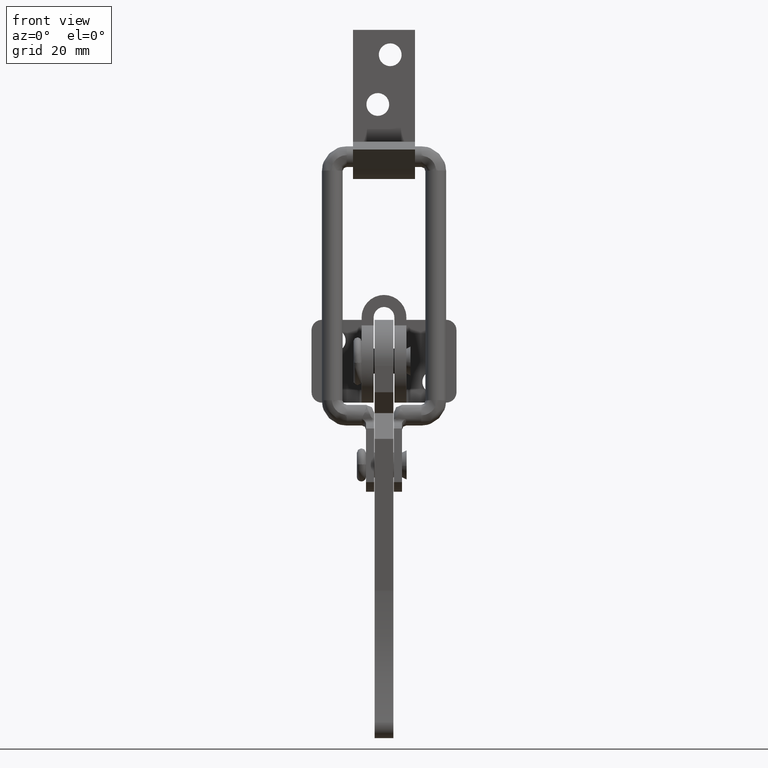
[diagram: clean part render]
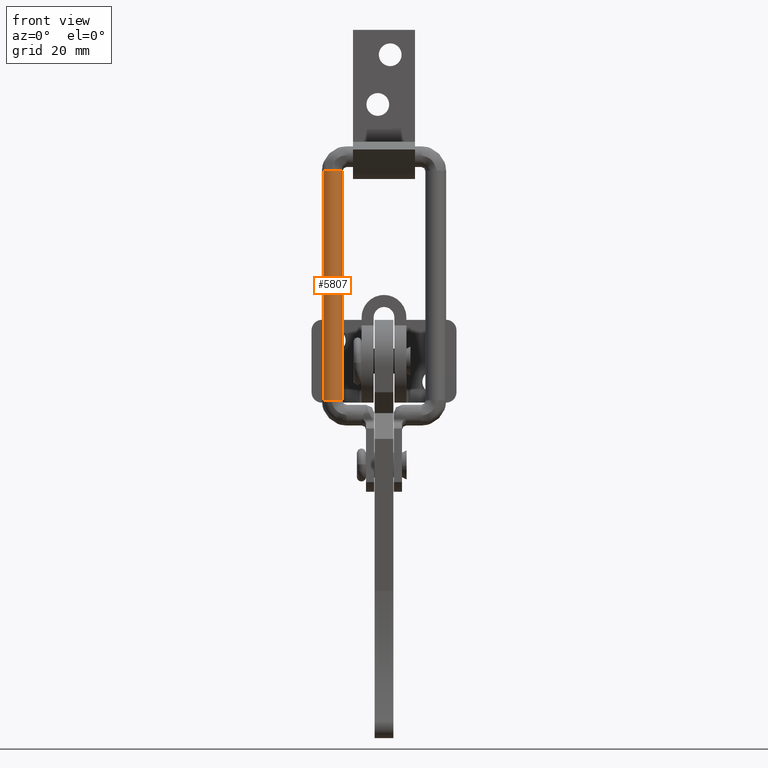
[diagram: same view with one face highlighted and labeled with its STEP entity id]
A machine part, front view. The second image highlights one B-rep face of the part: STEP entity #5807.
In plain terms, the highlighted face is a freeform B-spline surface patch.
Its self-contained STEP definition (entity closure, byte-faithful):
#5582=CARTESIAN_POINT('',(-14.561127348859870,5.322847664884176,-9.445909589647870));
#5583=VERTEX_POINT('',#5582);
#5597=CARTESIAN_POINT('',(-14.561127348027030,8.959083150561943,46.000095320518440));
#5598=VERTEX_POINT('',#5597);
#5599=CARTESIAN_POINT('',(-14.561127348027030,8.959083150561943,46.000095320518440));
#5600=CARTESIAN_POINT('',(-14.561127348859870,5.322847664884176,-9.445909589647870));
#5601=QUASI_UNIFORM_CURVE('',1,(#5599,#5600),.UNSPECIFIED.,.F.,.U.);
#5602=EDGE_CURVE('',#5598,#5583,#5601,.T.);
#5634=CARTESIAN_POINT('',(-10.523268007590840,11.898144195904100,45.807347112018967));
#5635=VERTEX_POINT('',#5634);
#5651=CARTESIAN_POINT('',(-10.523268007839940,8.261908710576730,-9.638657798582186));
#5652=VERTEX_POINT('',#5651);
#5653=CARTESIAN_POINT('',(-10.523268007590840,11.898144195904100,45.807347112018967));
#5654=CARTESIAN_POINT('',(-10.523268007839940,8.261908710576730,-9.638657798582186));
#5655=QUASI_UNIFORM_CURVE('',1,(#5653,#5654),.UNSPECIFIED.,.F.,.U.);
#5656=EDGE_CURVE('',#5635,#5652,#5655,.T.);
#5691=CARTESIAN_POINT('',(-10.523268007590660,11.989050084374810,47.193497255256013));
#5692=CARTESIAN_POINT('',(-8.992799793452859,10.016505439758681,47.322859809768808));
#5693=CARTESIAN_POINT('',(-10.969581785862200,8.489317873732130,47.423015152412432));
#5694=CARTESIAN_POINT('',(-12.946363778271532,6.962130307705579,47.523170495056057));
#5695=CARTESIAN_POINT('',(-14.476831992409339,8.934674952321704,47.393807940543262));
#5696=CARTESIAN_POINT('',(-14.520633335164348,8.991128332588119,47.390105639811019));
#5697=CARTESIAN_POINT('',(-14.561127348864494,9.049989038412400,47.386245462913813));
#5698=CARTESIAN_POINT('',(-10.523268007590660,8.168730132488578,-11.059462344951211));
#5699=CARTESIAN_POINT('',(-8.992799793452859,6.196185487872453,-10.930099790438421));
#5700=CARTESIAN_POINT('',(-10.969581785862200,4.668997921845902,-10.829944447794800));
#5701=CARTESIAN_POINT('',(-12.946363778271532,3.141810355819351,-10.729789105151172));
#5702=CARTESIAN_POINT('',(-14.476831992409339,5.114355000435475,-10.859151659663970));
#5703=CARTESIAN_POINT('',(-14.520633335164348,5.170808380701891,-10.862853960396206));
#5704=CARTESIAN_POINT('',(-14.561127348864494,5.229669086526172,-10.866714137293419));
#5712=(BOUNDED_SURFACE()B_SPLINE_SURFACE(2,1,((#5691,#5698),(#5692,#5699),(#5693,#5700),(#5694,#5701),(#5695,#5702),(#5696,#5703),(#5697,#5704)),.UNSPECIFIED.,.F.,.F.,.U.)B_SPLINE_SURFACE_WITH_KNOTS((3,2,2,3),(2,2),(0.0,4.142135623730950,8.284271247461900,8.449956672411139),(0.0,58.378096463640851),.UNSPECIFIED.)GEOMETRIC_REPRESENTATION_ITEM()RATIONAL_B_SPLINE_SURFACE(((1.0,1.0),(0.707106781186548,0.707106781186548),(1.0,1.0),(0.707106781186548,0.707106781186548),(1.0,1.0),(0.988284271247462,0.988284271247462),(0.977505800795127,0.977505800795127)))REPRESENTATION_ITEM('')SURFACE());
#5713=CARTESIAN_POINT('',(-12.562875801082480,4.240867846565324,-9.374952323295307));
#5714=VERTEX_POINT('',#5713);
#5715=CARTESIAN_POINT('',(-14.561127348859870,5.322847664884177,-9.445909589647869));
#5716=CARTESIAN_POINT('',(-13.874411204165664,4.324660691461832,-9.380446930987270));
#5717=CARTESIAN_POINT('',(-12.663652454658040,4.245427450094575,-9.375250691432656));
#5718=CARTESIAN_POINT('',(-12.613310513835611,4.242133024058255,-9.375034637834641));
#5719=CARTESIAN_POINT('',(-12.562875801082480,4.240867846565324,-9.374952323295307));
#5727=(BOUNDED_CURVE()B_SPLINE_CURVE(2,(#5715,#5716,#5717,#5718,#5719),.UNSPECIFIED.,.F.,.U.)B_SPLINE_CURVE_WITH_KNOTS((3,2,3),(0.107127540890585,0.250000000000000,0.257075575605256),.UNSPECIFIED.)CURVE()GEOMETRIC_REPRESENTATION_ITEM()RATIONAL_B_SPLINE_CURVE((0.856547225993735,0.832614502286600,1.0,0.991710447544074,0.983890121929234))REPRESENTATION_ITEM(''));
#5728=EDGE_CURVE('',#5583,#5714,#5727,.T.);
#5729=ORIENTED_EDGE('',*,*,#5728,.T.);
#5730=CARTESIAN_POINT('',(-10.005408896187699,6.571469381596707,-9.527796149394415));
#5731=VERTEX_POINT('',#5730);
#5732=CARTESIAN_POINT('',(-12.562875801082480,4.240867846565324,-9.374952323295307));
#5733=CARTESIAN_POINT('',(-10.162538957948536,4.180656402588228,-9.371002905109158));
#5734=CARTESIAN_POINT('',(-10.005408896187699,6.571469381596707,-9.527796149394415));
#5742=(BOUNDED_CURVE()B_SPLINE_CURVE(2,(#5732,#5733,#5734),.UNSPECIFIED.,.F.,.U.)B_SPLINE_CURVE_WITH_KNOTS((3,3),(0.257075575605256,0.500000000000000),.UNSPECIFIED.)CURVE()GEOMETRIC_REPRESENTATION_ITEM()RATIONAL_B_SPLINE_CURVE((0.983890121929234,0.715396333642473,1.0))REPRESENTATION_ITEM(''));
#5743=EDGE_CURVE('',#5714,#5731,#5742,.T.);
#5744=ORIENTED_EDGE('',*,*,#5743,.T.);
#5745=CARTESIAN_POINT('',(-10.005408896187699,6.571469381596707,-9.527796149394415));
#5746=CARTESIAN_POINT('',(-9.943425470839944,7.514578396791836,-9.589646709645450));
#5747=CARTESIAN_POINT('',(-10.523268007839937,8.261908710576730,-9.638657798582186));
#5755=(BOUNDED_CURVE()B_SPLINE_CURVE(2,(#5745,#5746,#5747),.UNSPECIFIED.,.F.,.U.)B_SPLINE_CURVE_WITH_KNOTS((3,3),(0.500000000000000,0.615779888024794),.UNSPECIFIED.)CURVE()GEOMETRIC_REPRESENTATION_ITEM()RATIONAL_B_SPLINE_CURVE((1.0,0.864355423690228,0.854350158230984))REPRESENTATION_ITEM(''));
#5756=EDGE_CURVE('',#5731,#5652,#5755,.T.);
#5757=ORIENTED_EDGE('',*,*,#5756,.T.);
#5758=ORIENTED_EDGE('',*,*,#5656,.F.);
#5759=CARTESIAN_POINT('',(-10.005408896187699,10.207704866647511,45.918208759930657));
#5760=VERTEX_POINT('',#5759);
#5761=CARTESIAN_POINT('',(-10.005408896187699,10.207704866647511,45.918208759930657));
#5762=CARTESIAN_POINT('',(-9.943425470818383,11.150813882170704,45.856358199658096));
#5763=CARTESIAN_POINT('',(-10.523268007590836,11.898144195904091,45.807347112018981));
#5771=(BOUNDED_CURVE()B_SPLINE_CURVE(2,(#5761,#5762,#5763),.UNSPECIFIED.,.F.,.U.)B_SPLINE_CURVE_WITH_KNOTS((3,3),(0.500000000000000,0.615779888059606),.UNSPECIFIED.)CURVE()GEOMETRIC_REPRESENTATION_ITEM()RATIONAL_B_SPLINE_CURVE((1.0,0.864355423649443,0.854350158224968))REPRESENTATION_ITEM(''));
#5772=EDGE_CURVE('',#5760,#5635,#5771,.T.);
#5773=ORIENTED_EDGE('',*,*,#5772,.F.);
#5774=CARTESIAN_POINT('',(-12.705708001344910,7.884770765509062,46.070550405576242));
#5775=VERTEX_POINT('',#5774);
#5776=CARTESIAN_POINT('',(-12.705708001344906,7.884770765509062,46.070550405576249));
#5777=CARTESIAN_POINT('',(-12.684693368525581,7.883039873208166,46.070663916146550));
#5778=CARTESIAN_POINT('',(-12.663652454658040,7.881662935145374,46.070754217892407));
#5779=CARTESIAN_POINT('',(-10.169011350845738,7.718411171915560,46.081460523160473));
#5780=CARTESIAN_POINT('',(-10.005408896187699,10.207704866647511,45.918208759930657));
#5788=(BOUNDED_CURVE()B_SPLINE_CURVE(2,(#5776,#5777,#5778,#5779,#5780),.UNSPECIFIED.,.F.,.U.)B_SPLINE_CURVE_WITH_KNOTS((3,2,3),(0.247028355197129,0.250000000000000,0.500000000000000),.UNSPECIFIED.)CURVE()GEOMETRIC_REPRESENTATION_ITEM()RATIONAL_B_SPLINE_CURVE((0.993119769322240,0.996518501554068,1.0,0.707106781186548,1.0))REPRESENTATION_ITEM(''));
#5789=EDGE_CURVE('',#5775,#5760,#5788,.T.);
#5790=ORIENTED_EDGE('',*,*,#5789,.F.);
#5791=CARTESIAN_POINT('',(-14.561127348027034,8.959083150561943,46.000095320518447));
#5792=CARTESIAN_POINT('',(-13.889096180704138,7.982241760628334,46.064158103729156));
#5793=CARTESIAN_POINT('',(-12.705708001344906,7.884770765509062,46.070550405576249));
#5801=(BOUNDED_CURVE()B_SPLINE_CURVE(2,(#5791,#5792,#5793),.UNSPECIFIED.,.F.,.U.)B_SPLINE_CURVE_WITH_KNOTS((3,3),(0.107127540790974,0.247028355197129),.UNSPECIFIED.)CURVE()GEOMETRIC_REPRESENTATION_ITEM()RATIONAL_B_SPLINE_CURVE((0.856547226027107,0.833112285681588,0.993119769322240))REPRESENTATION_ITEM(''));
#5802=EDGE_CURVE('',#5598,#5775,#5801,.T.);
#5803=ORIENTED_EDGE('',*,*,#5802,.F.);
#5804=ORIENTED_EDGE('',*,*,#5602,.T.);
#5805=EDGE_LOOP('',(#5729,#5744,#5757,#5758,#5773,#5790,#5803,#5804));
#5806=FACE_OUTER_BOUND('',#5805,.T.);
#5807=ADVANCED_FACE('',(#5806),#5712,.T.);